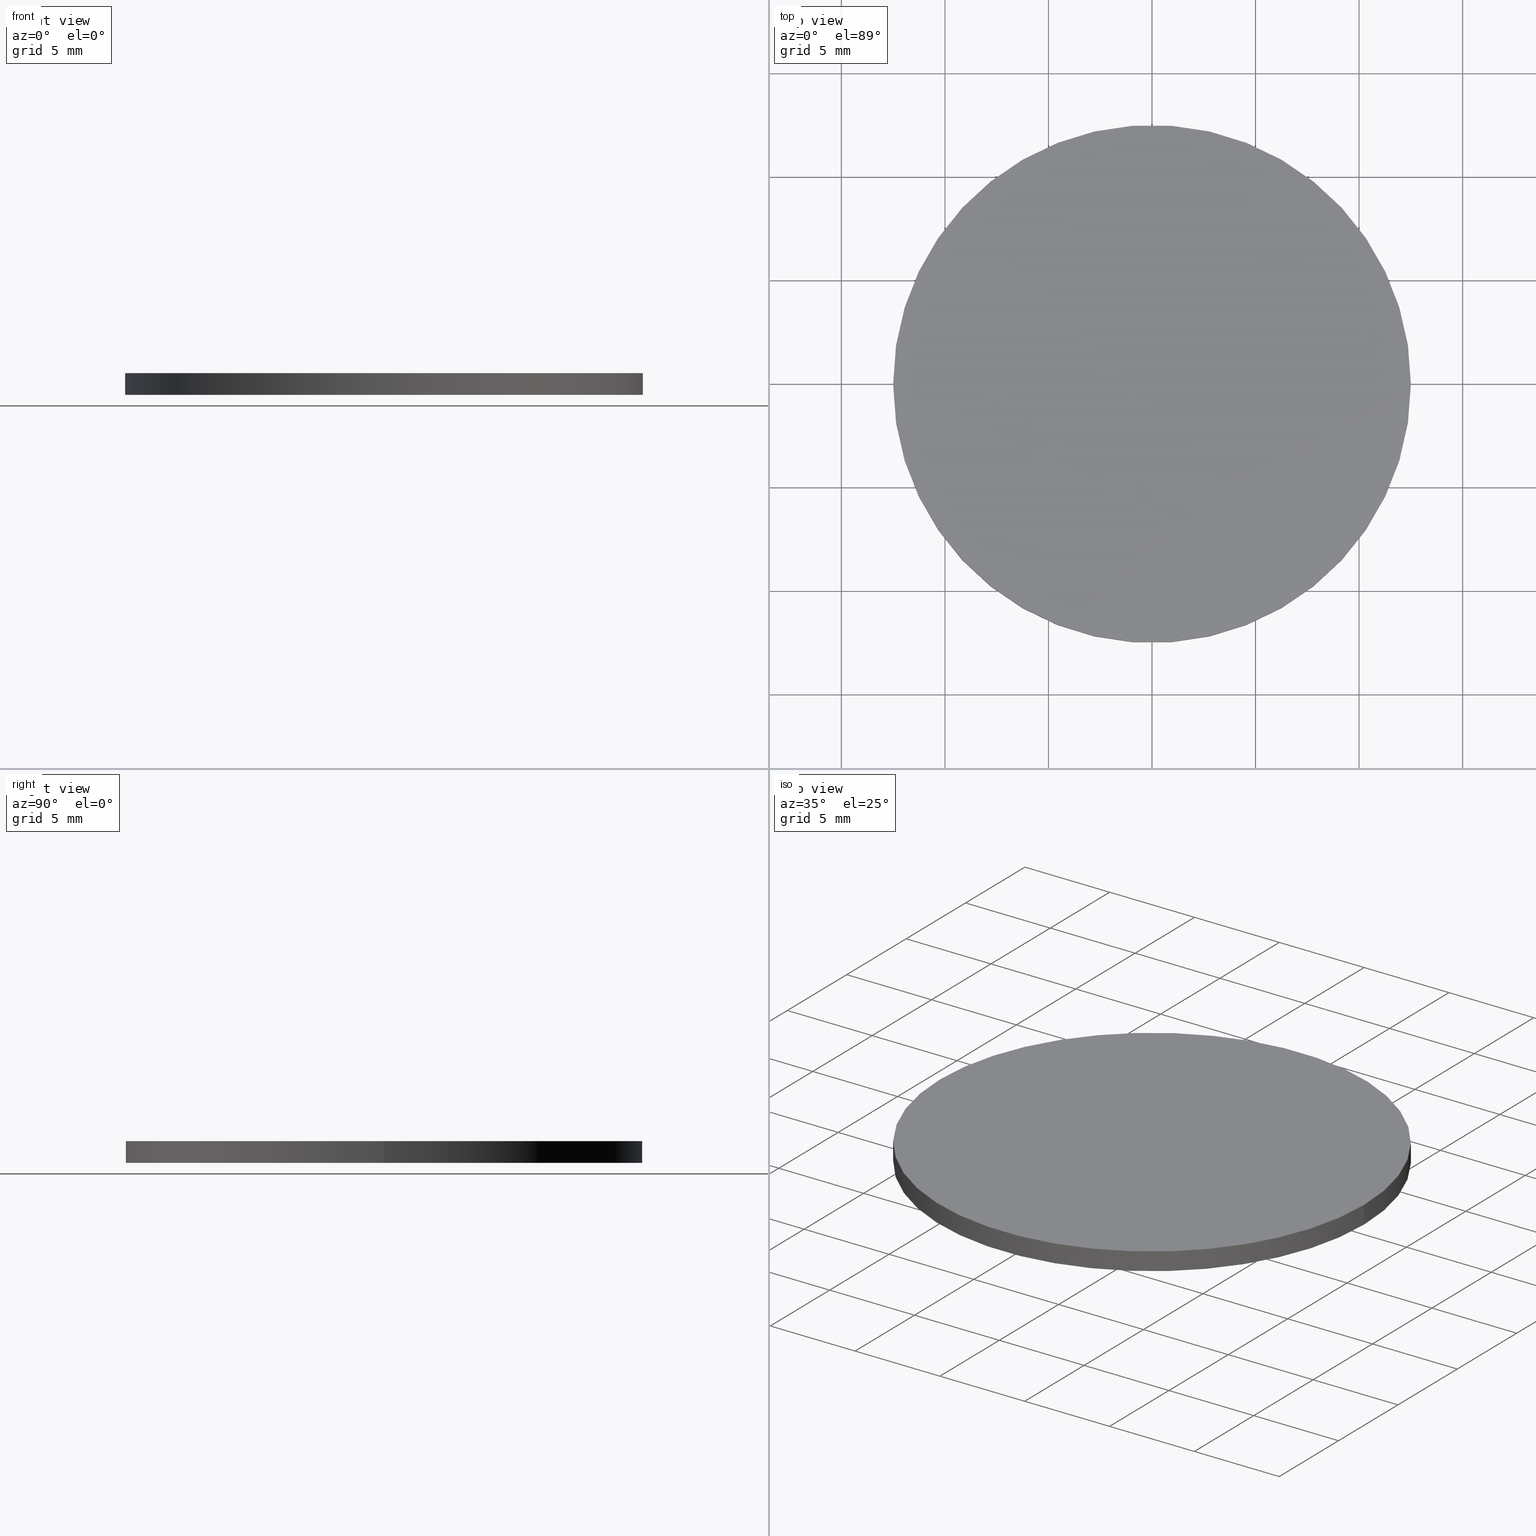
[diagram: canonical four-view strip — front | top / right | iso, engineering-drawing reading convention]
A machine part, canonical four-view strip (front | top / right | iso — engineering-drawing reading convention). The complete STEP part file that produces these views, byte-faithful:
ISO-10303-21;
HEADER;
FILE_DESCRIPTION (( 'STEP AP214' ),
    '1' );
FILE_NAME ('199968.STEP',
    '2020-03-11T06:01:51',
    ( '' ),
    ( '' ),
    'SwSTEP 2.0',
    'SolidWorks 2016',
    '' );
FILE_SCHEMA (( 'AUTOMOTIVE_DESIGN' ));
ENDSEC;

DATA;
#1 = DIRECTION ( 'NONE',  ( 0.0000000000000000000, 0.0000000000000000000, 1.000000000000000000 ) ) ;
#2 = EDGE_LOOP ( 'NONE', ( #43, #60, #136, #67 ) ) ;
#3 = PLANE ( 'NONE',  #140 ) ;
#4 = CARTESIAN_POINT ( 'NONE',  ( -12.50000000000000000, 0.0000000000000000000, 1.050000000000000000 ) ) ;
#5 = PLANE ( 'NONE',  #128 ) ;
#6 = DIRECTION ( 'NONE',  ( 1.000000000000000000, 0.0000000000000000000, 0.0000000000000000000 ) ) ;
#7 = PRODUCT_CONTEXT ( 'NONE', #112, 'mechanical' ) ;
#8 = EDGE_CURVE ( 'NONE', #93, #102, #105, .T. ) ;
#9 = CARTESIAN_POINT ( 'NONE',  ( 0.0000000000000000000, 0.0000000000000000000, 0.0000000000000000000 ) ) ;
#10 = PRESENTATION_LAYER_ASSIGNMENT (  '', '', ( #45 ) ) ;
#11 = ORIENTED_EDGE ( 'NONE', *, *, #68, .F. ) ;
#12 = SURFACE_SIDE_STYLE ('',( #137 ) ) ;
#13 = AXIS2_PLACEMENT_3D ( 'NONE', #108, #48, #127 ) ;
#14 = PRODUCT ( '199968', '199968', '', ( #7 ) ) ;
#15 = CARTESIAN_POINT ( 'NONE',  ( 0.0000000000000000000, 0.0000000000000000000, 0.0000000000000000000 ) ) ;
#16 = DIRECTION ( 'NONE',  ( -0.0000000000000000000, -0.0000000000000000000, -1.000000000000000000 ) ) ;
#17 = CARTESIAN_POINT ( 'NONE',  ( 0.0000000000000000000, 0.0000000000000000000, 0.0000000000000000000 ) ) ;
#18 = DIRECTION ( 'NONE',  ( 0.0000000000000000000, 0.0000000000000000000, 1.000000000000000000 ) ) ;
#19 = AXIS2_PLACEMENT_3D ( 'NONE', #17, #18, #6 ) ;
#20 = ADVANCED_FACE ( 'NONE', ( #27 ), #117, .T. ) ;
#21 = EDGE_LOOP ( 'NONE', ( #109, #81 ) ) ;
#22 = CLOSED_SHELL ( 'NONE', ( #114, #20, #91, #58 ) ) ;
#23 = LINE ( 'NONE', #76, #56 ) ;
#24 = AXIS2_PLACEMENT_3D ( 'NONE', #61, #78, #101 ) ;
#25 = MECHANICAL_DESIGN_GEOMETRIC_PRESENTATION_REPRESENTATION (  '', ( #45 ), #55 ) ;
#26 = UNCERTAINTY_MEASURE_WITH_UNIT (LENGTH_MEASURE( 1.000000000000000100E-005 ), #40, 'distance_accuracy_value', 'NONE');
#27 = FACE_OUTER_BOUND ( 'NONE', #2, .T. ) ;
#28 = EDGE_LOOP ( 'NONE', ( #11, #106, #116, #36 ) ) ;
#29 = FILL_AREA_STYLE_COLOUR ( '', #111 ) ;
#30 = CARTESIAN_POINT ( 'NONE',  ( 12.50000000000000000, 1.530808498934191500E-015, 0.0000000000000000000 ) ) ;
#31 = DIRECTION ( 'NONE',  ( 0.0000000000000000000, 0.0000000000000000000, 1.000000000000000000 ) ) ;
#32 = AXIS2_PLACEMENT_3D ( 'NONE', #122, #64, #52 ) ;
#33 = PRESENTATION_LAYER_ASSIGNMENT (  '', '', ( #95 ) ) ;
#34 = ORIENTED_EDGE ( 'NONE', *, *, #68, .T. ) ;
#35 =( NAMED_UNIT ( * ) SI_UNIT ( $, .STERADIAN. ) SOLID_ANGLE_UNIT ( ) );
#36 = ORIENTED_EDGE ( 'NONE', *, *, #120, .F. ) ;
#37 = DIRECTION ( 'NONE',  ( 1.000000000000000000, 0.0000000000000000000, -0.0000000000000000000 ) ) ;
#38 = AXIS2_PLACEMENT_3D ( 'NONE', #9, #44, #90 ) ;
#39 =( NAMED_UNIT ( * ) PLANE_ANGLE_UNIT ( ) SI_UNIT ( $, .RADIAN. ) );
#40 =( LENGTH_UNIT ( ) NAMED_UNIT ( * ) SI_UNIT ( .MILLI., .METRE. ) );
#41 =( NAMED_UNIT ( * ) SI_UNIT ( $, .STERADIAN. ) SOLID_ANGLE_UNIT ( ) );
#42 = COLOUR_RGB ( '',1.000000000000000000, 1.000000000000000000, 1.000000000000000000 ) ;
#43 = ORIENTED_EDGE ( 'NONE', *, *, #71, .F. ) ;
#44 = DIRECTION ( 'NONE',  ( 0.0000000000000000000, 0.0000000000000000000, 1.000000000000000000 ) ) ;
#45 = STYLED_ITEM ( 'NONE', ( #135 ), #139 ) ;
#46 = PRODUCT_DEFINITION_SHAPE ( 'NONE', 'NONE',  #104 ) ;
#47 = AXIS2_PLACEMENT_3D ( 'NONE', #73, #31, #88 ) ;
#48 = DIRECTION ( 'NONE',  ( -0.0000000000000000000, -0.0000000000000000000, -1.000000000000000000 ) ) ;
#49 = CARTESIAN_POINT ( 'NONE',  ( 0.0000000000000000000, 0.0000000000000000000, 1.050000000000000000 ) ) ;
#50 = DIRECTION ( 'NONE',  ( -0.0000000000000000000, -0.0000000000000000000, -1.000000000000000000 ) ) ;
#51 = PRESENTATION_STYLE_ASSIGNMENT (( #107 ) ) ;
#52 = DIRECTION ( 'NONE',  ( -1.000000000000000000, 0.0000000000000000000, 0.0000000000000000000 ) ) ;
#53 = CARTESIAN_POINT ( 'NONE',  ( -12.50000000000000000, 0.0000000000000000000, 1.050000000000000000 ) ) ;
#54 = FILL_AREA_STYLE_COLOUR ( '', #42 ) ;
#55 =( GEOMETRIC_REPRESENTATION_CONTEXT ( 3 ) GLOBAL_UNCERTAINTY_ASSIGNED_CONTEXT ( ( #75 ) ) GLOBAL_UNIT_ASSIGNED_CONTEXT ( ( #99, #39, #110 ) ) REPRESENTATION_CONTEXT ( 'NONE', 'WORKASPACE' ) );
#56 = VECTOR ( 'NONE', #50, 1000.000000000000000 ) ;
#57 = MECHANICAL_DESIGN_GEOMETRIC_PRESENTATION_REPRESENTATION (  '', ( #95 ), #69 ) ;
#58 = ADVANCED_FACE ( 'NONE', ( #115 ), #3, .F. ) ;
#59 = FACE_OUTER_BOUND ( 'NONE', #28, .T. ) ;
#60 = ORIENTED_EDGE ( 'NONE', *, *, #8, .F. ) ;
#61 = CARTESIAN_POINT ( 'NONE',  ( 0.0000000000000000000, 0.0000000000000000000, 1.050000000000000000 ) ) ;
#62 = APPLICATION_PROTOCOL_DEFINITION ( 'draft international standard', 'automotive_design', 1998, #112 ) ;
#63 = EDGE_CURVE ( 'NONE', #138, #125, #84, .T. ) ;
#64 = DIRECTION ( 'NONE',  ( -0.0000000000000000000, -0.0000000000000000000, -1.000000000000000000 ) ) ;
#65 = APPLICATION_PROTOCOL_DEFINITION ( 'draft international standard', 'automotive_design', 1998, #131 ) ;
#66 = UNCERTAINTY_MEASURE_WITH_UNIT (LENGTH_MEASURE( 1.000000000000000100E-005 ), #74, 'distance_accuracy_value', 'NONE');
#67 = ORIENTED_EDGE ( 'NONE', *, *, #63, .T. ) ;
#68 = EDGE_CURVE ( 'NONE', #102, #93, #98, .T. ) ;
#69 =( GEOMETRIC_REPRESENTATION_CONTEXT ( 3 ) GLOBAL_UNCERTAINTY_ASSIGNED_CONTEXT ( ( #66 ) ) GLOBAL_UNIT_ASSIGNED_CONTEXT ( ( #74, #80, #41 ) ) REPRESENTATION_CONTEXT ( 'NONE', 'WORKASPACE' ) );
#70 = VECTOR ( 'NONE', #16, 1000.000000000000000 ) ;
#71 = EDGE_CURVE ( 'NONE', #102, #125, #23, .T. ) ;
#72 = SHAPE_DEFINITION_REPRESENTATION ( #46, #96 ) ;
#73 = CARTESIAN_POINT ( 'NONE',  ( 0.0000000000000000000, 0.0000000000000000000, 0.0000000000000000000 ) ) ;
#74 =( LENGTH_UNIT ( ) NAMED_UNIT ( * ) SI_UNIT ( .MILLI., .METRE. ) );
#75 = UNCERTAINTY_MEASURE_WITH_UNIT (LENGTH_MEASURE( 1.000000000000000100E-005 ), #99, 'distance_accuracy_value', 'NONE');
#76 = CARTESIAN_POINT ( 'NONE',  ( 12.50000000000000000, 1.530808498934191500E-015, 1.050000000000000000 ) ) ;
#77 = EDGE_LOOP ( 'NONE', ( #118, #34 ) ) ;
#78 = DIRECTION ( 'NONE',  ( 0.0000000000000000000, 0.0000000000000000000, 1.000000000000000000 ) ) ;
#79 = CARTESIAN_POINT ( 'NONE',  ( -12.50000000000000000, 0.0000000000000000000, 0.0000000000000000000 ) ) ;
#80 =( NAMED_UNIT ( * ) PLANE_ANGLE_UNIT ( ) SI_UNIT ( $, .RADIAN. ) );
#81 = ORIENTED_EDGE ( 'NONE', *, *, #92, .F. ) ;
#82 = CYLINDRICAL_SURFACE ( 'NONE', #32, 12.50000000000000000 ) ;
#83 = FILL_AREA_STYLE ('',( #29 ) ) ;
#84 = CIRCLE ( 'NONE', #47, 12.50000000000000000 ) ;
#85 = AXIS2_PLACEMENT_3D ( 'NONE', #49, #1, #86 ) ;
#86 = DIRECTION ( 'NONE',  ( 1.000000000000000000, 0.0000000000000000000, 0.0000000000000000000 ) ) ;
#87 = DIRECTION ( 'NONE',  ( 1.000000000000000000, 0.0000000000000000000, -0.0000000000000000000 ) ) ;
#88 = DIRECTION ( 'NONE',  ( 1.000000000000000000, 0.0000000000000000000, 0.0000000000000000000 ) ) ;
#89 = LINE ( 'NONE', #53, #70 ) ;
#90 = DIRECTION ( 'NONE',  ( 1.000000000000000000, 0.0000000000000000000, 0.0000000000000000000 ) ) ;
#91 = ADVANCED_FACE ( 'NONE', ( #119 ), #5, .T. ) ;
#92 = EDGE_CURVE ( 'NONE', #125, #138, #124, .T. ) ;
#93 = VERTEX_POINT ( 'NONE', #4 ) ;
#94 =( NAMED_UNIT ( * ) PLANE_ANGLE_UNIT ( ) SI_UNIT ( $, .RADIAN. ) );
#95 = STYLED_ITEM ( 'NONE', ( #51 ), #96 ) ;
#96 = ADVANCED_BREP_SHAPE_REPRESENTATION ( '199968', ( #139, #38 ), #134 ) ;
#97 = DIRECTION ( 'NONE',  ( 0.0000000000000000000, 0.0000000000000000000, 1.000000000000000000 ) ) ;
#98 = CIRCLE ( 'NONE', #24, 12.50000000000000000 ) ;
#99 =( LENGTH_UNIT ( ) NAMED_UNIT ( * ) SI_UNIT ( .MILLI., .METRE. ) );
#100 = SURFACE_SIDE_STYLE ('',( #133 ) ) ;
#101 = DIRECTION ( 'NONE',  ( 1.000000000000000000, 0.0000000000000000000, 0.0000000000000000000 ) ) ;
#102 = VERTEX_POINT ( 'NONE', #130 ) ;
#103 = PRODUCT_DEFINITION_CONTEXT ( 'detailed design', #131, 'design' ) ;
#104 = PRODUCT_DEFINITION ( 'δ֪', '', #113, #103 ) ;
#105 = CIRCLE ( 'NONE', #85, 12.50000000000000000 ) ;
#106 = ORIENTED_EDGE ( 'NONE', *, *, #71, .T. ) ;
#107 = SURFACE_STYLE_USAGE ( .BOTH. , #12 ) ;
#108 = CARTESIAN_POINT ( 'NONE',  ( 0.0000000000000000000, 0.0000000000000000000, 1.050000000000000000 ) ) ;
#109 = ORIENTED_EDGE ( 'NONE', *, *, #63, .F. ) ;
#110 =( NAMED_UNIT ( * ) SI_UNIT ( $, .STERADIAN. ) SOLID_ANGLE_UNIT ( ) );
#111 = COLOUR_RGB ( '',1.000000000000000000, 1.000000000000000000, 1.000000000000000000 ) ;
#112 = APPLICATION_CONTEXT ( 'automotive_design' ) ;
#113 = PRODUCT_DEFINITION_FORMATION_WITH_SPECIFIED_SOURCE ( '�κ�', '', #14, .NOT_KNOWN. ) ;
#114 = ADVANCED_FACE ( 'NONE', ( #59 ), #82, .T. ) ;
#115 = FACE_OUTER_BOUND ( 'NONE', #21, .T. ) ;
#116 = ORIENTED_EDGE ( 'NONE', *, *, #92, .T. ) ;
#117 = CYLINDRICAL_SURFACE ( 'NONE', #13, 12.50000000000000000 ) ;
#118 = ORIENTED_EDGE ( 'NONE', *, *, #8, .T. ) ;
#119 = FACE_OUTER_BOUND ( 'NONE', #77, .T. ) ;
#120 = EDGE_CURVE ( 'NONE', #93, #138, #89, .T. ) ;
#121 = DIRECTION ( 'NONE',  ( 0.0000000000000000000, 0.0000000000000000000, 1.000000000000000000 ) ) ;
#122 = CARTESIAN_POINT ( 'NONE',  ( 0.0000000000000000000, 0.0000000000000000000, 1.050000000000000000 ) ) ;
#123 = FILL_AREA_STYLE ('',( #54 ) ) ;
#124 = CIRCLE ( 'NONE', #19, 12.50000000000000000 ) ;
#125 = VERTEX_POINT ( 'NONE', #30 ) ;
#126 = PRODUCT_RELATED_PRODUCT_CATEGORY ( 'part', '', ( #14 ) ) ;
#127 = DIRECTION ( 'NONE',  ( -1.000000000000000000, 0.0000000000000000000, 0.0000000000000000000 ) ) ;
#128 = AXIS2_PLACEMENT_3D ( 'NONE', #132, #121, #87 ) ;
#129 = SURFACE_STYLE_USAGE ( .BOTH. , #100 ) ;
#130 = CARTESIAN_POINT ( 'NONE',  ( 12.50000000000000000, 1.530808498934191500E-015, 1.050000000000000000 ) ) ;
#131 = APPLICATION_CONTEXT ( 'automotive_design' ) ;
#132 = CARTESIAN_POINT ( 'NONE',  ( 0.0000000000000000000, 0.0000000000000000000, 1.050000000000000000 ) ) ;
#133 = SURFACE_STYLE_FILL_AREA ( #123 ) ;
#134 =( GEOMETRIC_REPRESENTATION_CONTEXT ( 3 ) GLOBAL_UNCERTAINTY_ASSIGNED_CONTEXT ( ( #26 ) ) GLOBAL_UNIT_ASSIGNED_CONTEXT ( ( #40, #94, #35 ) ) REPRESENTATION_CONTEXT ( 'NONE', 'WORKASPACE' ) );
#135 = PRESENTATION_STYLE_ASSIGNMENT (( #129 ) ) ;
#136 = ORIENTED_EDGE ( 'NONE', *, *, #120, .T. ) ;
#137 = SURFACE_STYLE_FILL_AREA ( #83 ) ;
#138 = VERTEX_POINT ( 'NONE', #79 ) ;
#139 = MANIFOLD_SOLID_BREP ( '͹̨-����1', #22 ) ;
#140 = AXIS2_PLACEMENT_3D ( 'NONE', #15, #97, #37 ) ;
ENDSEC;
END-ISO-10303-21;
